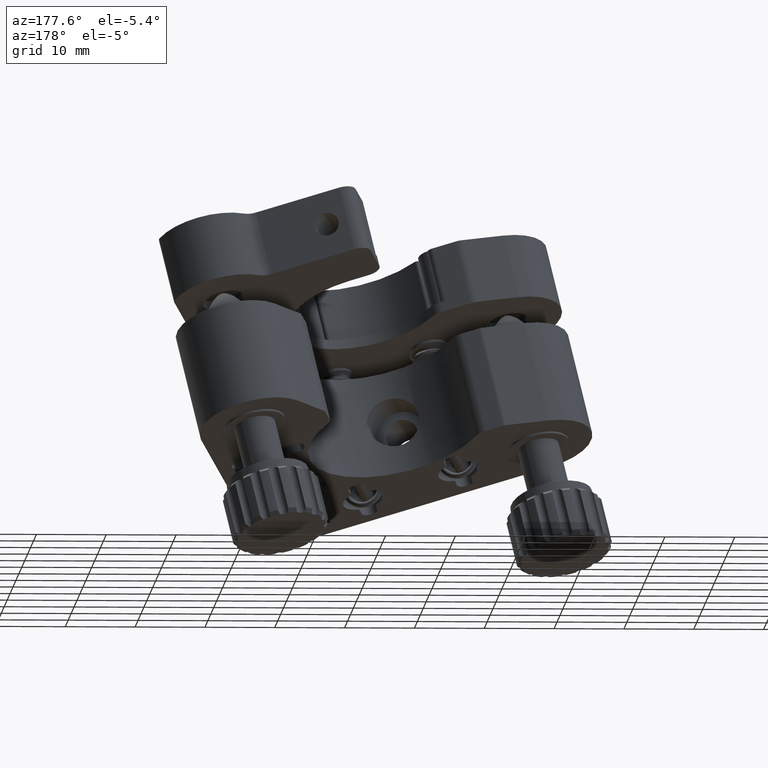
[diagram: clean part render]
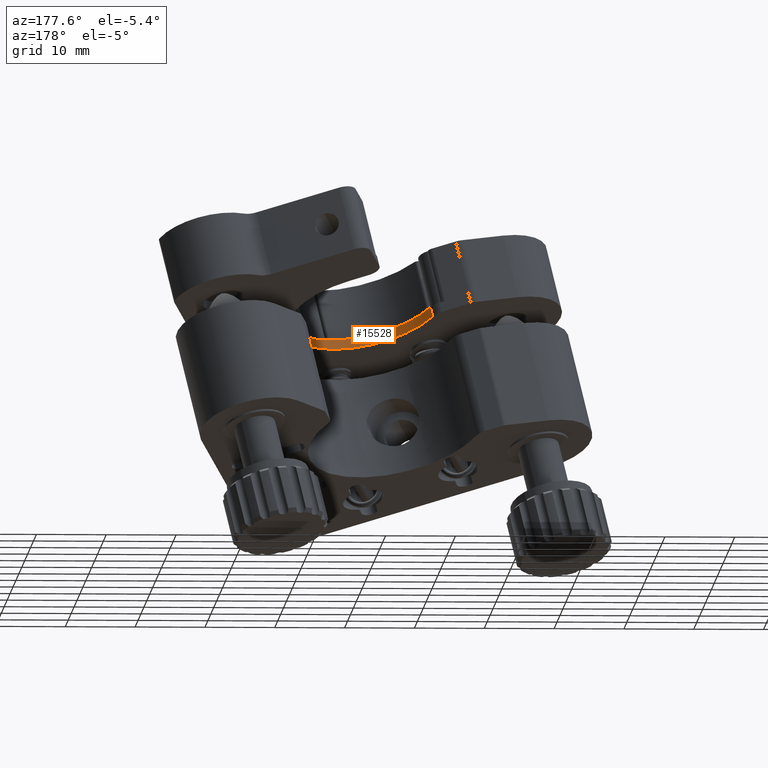
[diagram: same view with one face highlighted and labeled with its STEP entity id]
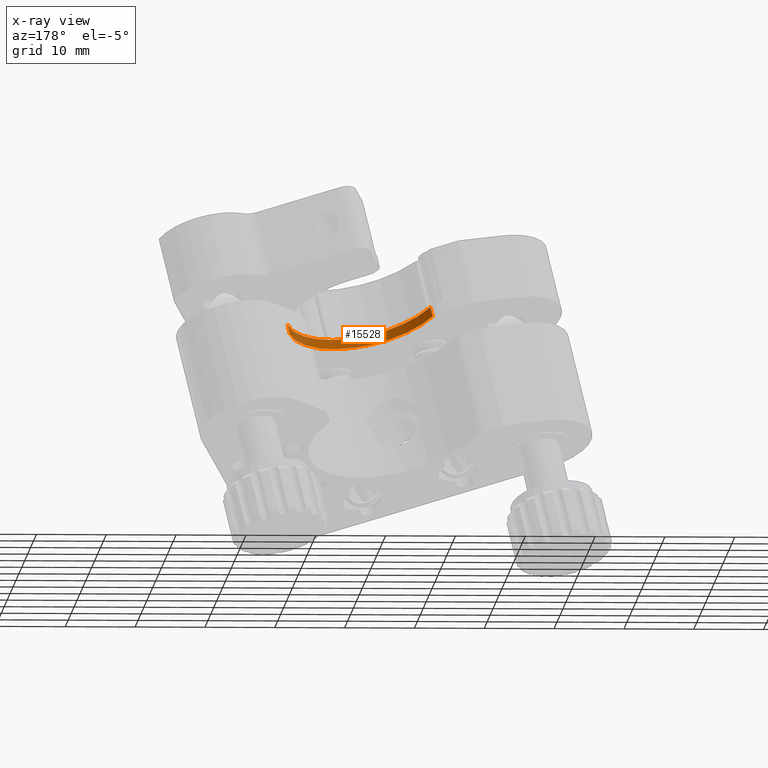
[diagram: x-ray of the same camera — body ghosted, the highlighted face saturated]
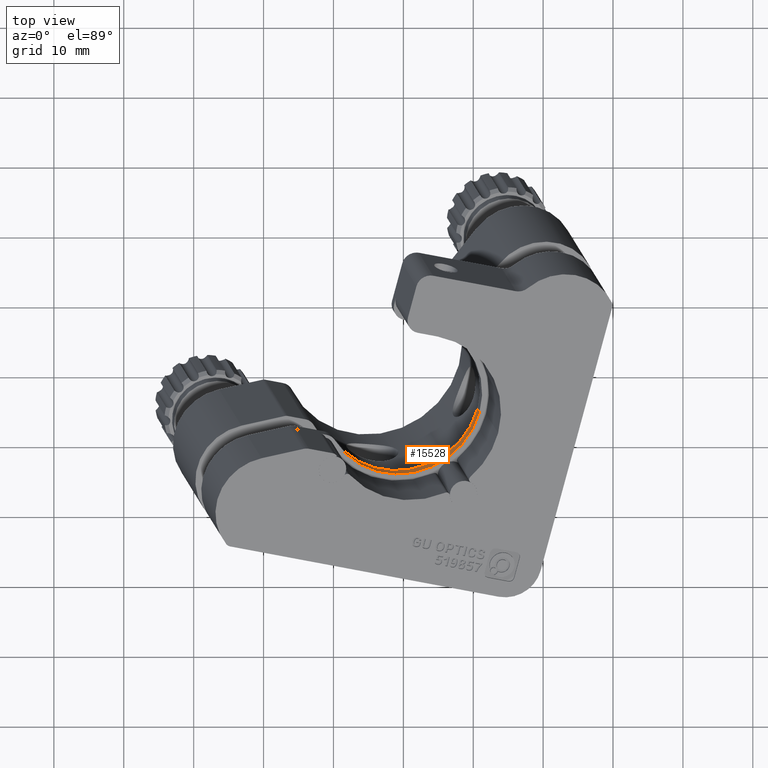
[diagram: same view with one face highlighted and labeled with its STEP entity id]
A machine part, auxiliary view. The second image highlights one B-rep face of the part: STEP entity #15528.
The next image is the same camera in x-ray: the body ghosted, the highlighted face saturated — about 13% of this face is hidden behind the body in this view.
A second angle (top view) of the same face is appended — the face is thin or edge-on in the first view.
In plain terms, the highlighted cylindrical surface (partial cylindrical patch) has radius 11.5 mm, axis along (0.2028, -0.3443, 0.9167).
Its self-contained STEP definition (entity closure, byte-faithful):
#99 = CIRCLE ( 'NONE', #14101, 11.50000000000003400 ) ;
#685 = CARTESIAN_POINT ( 'NONE',  ( -579.4127239467146600, -1715.074953943469600, -511.4934227337237800 ) ) ;
#1543 = CARTESIAN_POINT ( 'NONE',  ( -590.2932109630296500, -1713.091656195503400, -508.3419893565582600 ) ) ;
#3728 = CARTESIAN_POINT ( 'NONE',  ( -600.0665958482408100, -1719.151194442317800, -508.4557615892151100 ) ) ;
#3946 = EDGE_CURVE ( 'NONE', #31733, #22480, #99, .T. ) ;
#4314 = CARTESIAN_POINT ( 'NONE',  ( -579.1085716163313500, -1715.591337101258000, -510.1183446289330200 ) ) ;
#4840 = DIRECTION ( 'NONE',  ( 0.9461293057665237600, -0.1724606737361845700, -0.2740376849709124700 ) ) ;
#5656 = EDGE_LOOP ( 'NONE', ( #8175, #30212, #30206, #32807 ) ) ;
#6326 = CARTESIAN_POINT ( 'NONE',  ( -579.4127239467146600, -1715.074953943469600, -511.4934227337237800 ) ) ;
#7065 = CARTESIAN_POINT ( 'NONE',  ( -590.2932109630296500, -1713.091656195503400, -508.3419893565582600 ) ) ;
#8175 = ORIENTED_EDGE ( 'NONE', *, *, #13728, .F. ) ;
#9581 = FACE_OUTER_BOUND ( 'NONE', #5656, .T. ) ;
#12314 = VECTOR ( 'NONE', #32378, 1000.000000000000100 ) ;
#13728 = EDGE_CURVE ( 'NONE', #32943, #31733, #22098, .T. ) ;
#14101 = AXIS2_PLACEMENT_3D ( 'NONE', #39758, #39624, #39571 ) ;
#15528 = ADVANCED_FACE ( 'NONE', ( #9581 ), #31628, .F. ) ;
#17089 = AXIS2_PLACEMENT_3D ( 'NONE', #7065, #39703, #20228 ) ;
#17622 = AXIS2_PLACEMENT_3D ( 'NONE', #1543, #24494, #4840 ) ;
#20228 = DIRECTION ( 'NONE',  ( 0.9461293057665237600, -0.1724606737361845700, -0.2740376849709124700 ) ) ;
#22098 = LINE ( 'NONE', #6326, #12314 ) ;
#22245 = EDGE_CURVE ( 'NONE', #29453, #22480, #25898, .T. ) ;
#22480 = VERTEX_POINT ( 'NONE', #27539 ) ;
#24494 = DIRECTION ( 'NONE',  ( -0.2027682202555435900, 0.3442554385256142400, -0.9167187365271513000 ) ) ;
#24909 = CIRCLE ( 'NONE', #17622, 11.50000000000003400 ) ;
#25898 = LINE ( 'NONE', #3728, #37612 ) ;
#27539 = CARTESIAN_POINT ( 'NONE',  ( -599.7624435178574900, -1719.667577600105900, -507.0806834844243600 ) ) ;
#28778 = CARTESIAN_POINT ( 'NONE',  ( -600.0665958482408100, -1719.151194442317800, -508.4557615892151100 ) ) ;
#29453 = VERTEX_POINT ( 'NONE', #28778 ) ;
#30206 = ORIENTED_EDGE ( 'NONE', *, *, #22245, .T. ) ;
#30212 = ORIENTED_EDGE ( 'NONE', *, *, #36887, .T. ) ;
#31628 = CYLINDRICAL_SURFACE ( 'NONE', #17089, 11.50000000000003400 ) ;
#31733 = VERTEX_POINT ( 'NONE', #4314 ) ;
#32378 = DIRECTION ( 'NONE',  ( 0.2027682202555435600, -0.3442554385256141900, 0.9167187365271513000 ) ) ;
#32807 = ORIENTED_EDGE ( 'NONE', *, *, #3946, .F. ) ;
#32943 = VERTEX_POINT ( 'NONE', #685 ) ;
#36887 = EDGE_CURVE ( 'NONE', #32943, #29453, #24909, .T. ) ;
#37612 = VECTOR ( 'NONE', #39429, 1000.000000000000100 ) ;
#39429 = DIRECTION ( 'NONE',  ( 0.2027682202555435600, -0.3442554385256141900, 0.9167187365271513000 ) ) ;
#39571 = DIRECTION ( 'NONE',  ( 0.9461293057665237600, -0.1724606737361845700, -0.2740376849709124700 ) ) ;
#39624 = DIRECTION ( 'NONE',  ( -0.2027682202555435900, 0.3442554385256142400, -0.9167187365271513000 ) ) ;
#39703 = DIRECTION ( 'NONE',  ( 0.2027682202555435900, -0.3442554385256142400, 0.9167187365271513000 ) ) ;
#39758 = CARTESIAN_POINT ( 'NONE',  ( -589.9890586326464500, -1713.608039353292000, -506.9669112517675000 ) ) ;